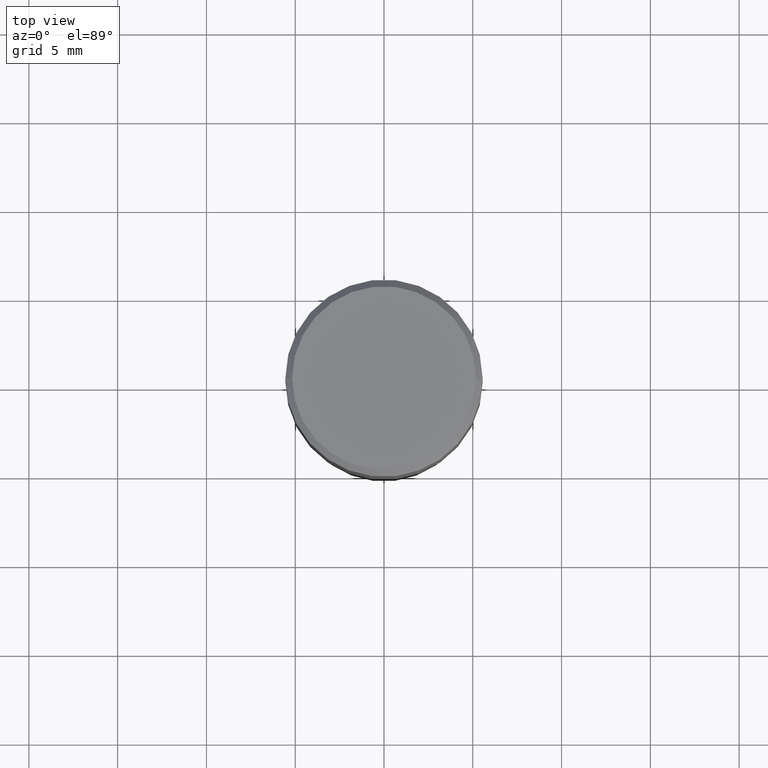
[diagram: clean part render]
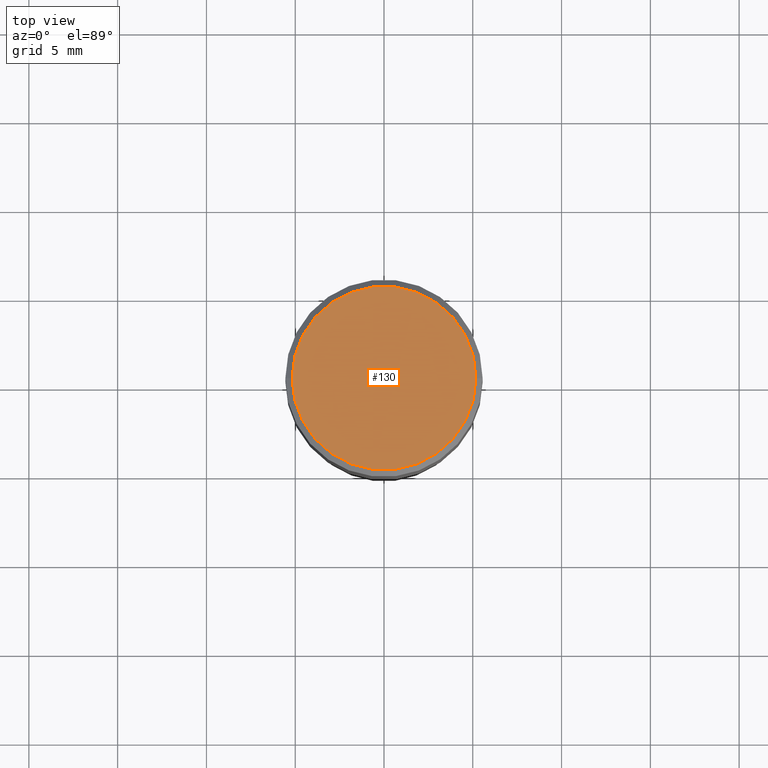
[diagram: same view with one face highlighted and labeled with its STEP entity id]
A machine part, top view. The second image highlights one B-rep face of the part: STEP entity #130.
In plain terms, the highlighted planar face has unit normal (0, -0, -1).
Its self-contained STEP definition (entity closure, byte-faithful):
#42 = AXIS2_PLACEMENT_3D ( 'NONE', #331, #54, #80 ) ;
#44 = CARTESIAN_POINT ( 'NONE',  ( -2.592568563193567003E-45, 3.701500806376036554E-31, 1.060151966214568974E-16 ) ) ;
#54 = DIRECTION ( 'NONE',  ( 2.438088387897960049E-29, -3.491481338843145188E-15, -1.000000000000000000 ) ) ;
#65 = EDGE_LOOP ( 'NONE', ( #451, #373 ) ) ;
#77 = EDGE_CURVE ( 'NONE', #129, #431, #395, .T. ) ;
#80 = DIRECTION ( 'NONE',  ( -1.000000000000000000, 6.982962677686265922E-15, -4.876176775795935793E-29 ) ) ;
#86 = PLANE ( 'NONE',  #42 ) ;
#119 = AXIS2_PLACEMENT_3D ( 'NONE', #461, #143, #244 ) ;
#129 = VERTEX_POINT ( 'NONE', #337 ) ;
#130 = ADVANCED_FACE ( 'NONE', ( #374 ), #86, .F. ) ;
#143 = DIRECTION ( 'NONE',  ( -2.445468806185136597E-29, 3.491481338843145583E-15, 1.000000000000000000 ) ) ;
#190 = DIRECTION ( 'NONE',  ( 1.000000000000000000, -6.982962677686266711E-15, 4.875065411617369217E-29 ) ) ;
#244 = DIRECTION ( 'NONE',  ( 1.000000000000000000, -6.982962677686266711E-15, 4.875065411617369217E-29 ) ) ;
#247 = DIRECTION ( 'NONE',  ( -2.445468806185136597E-29, 3.491481338843145583E-15, 1.000000000000000000 ) ) ;
#331 = CARTESIAN_POINT ( 'NONE',  ( 1.422778645578576487E-15, 0.2037499999999999867, -6.583817244785623957E-16 ) ) ;
#335 = CARTESIAN_POINT ( 'NONE',  ( 0.2037499999999999867, -1.475466312070559275E-15, 1.060151966214670170E-16 ) ) ;
#337 = CARTESIAN_POINT ( 'NONE',  ( -0.2037499999999999867, 1.448964755619900421E-15, 1.060151966214468518E-16 ) ) ;
#373 = ORIENTED_EDGE ( 'NONE', *, *, #403, .T. ) ;
#374 = FACE_OUTER_BOUND ( 'NONE', #65, .T. ) ;
#395 = CIRCLE ( 'NONE', #119, 0.2037499999999999867 ) ;
#403 = EDGE_CURVE ( 'NONE', #431, #129, #422, .T. ) ;
#422 = CIRCLE ( 'NONE', #460, 0.2037499999999999867 ) ;
#431 = VERTEX_POINT ( 'NONE', #335 ) ;
#451 = ORIENTED_EDGE ( 'NONE', *, *, #77, .T. ) ;
#460 = AXIS2_PLACEMENT_3D ( 'NONE', #44, #247, #190 ) ;
#461 = CARTESIAN_POINT ( 'NONE',  ( -2.592568563193567003E-45, 3.701500806376036554E-31, 1.060151966214568974E-16 ) ) ;